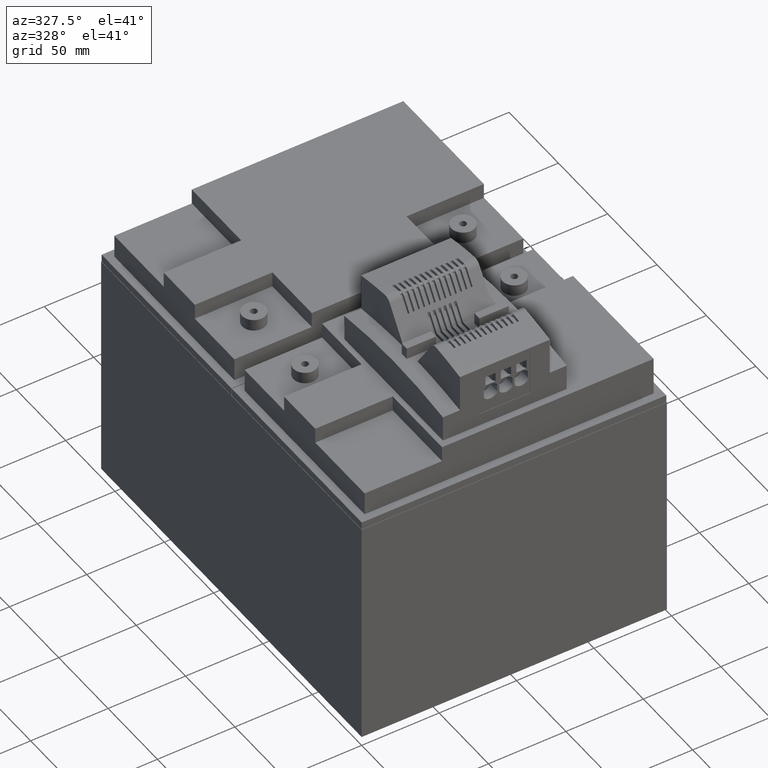
[diagram: clean part render]
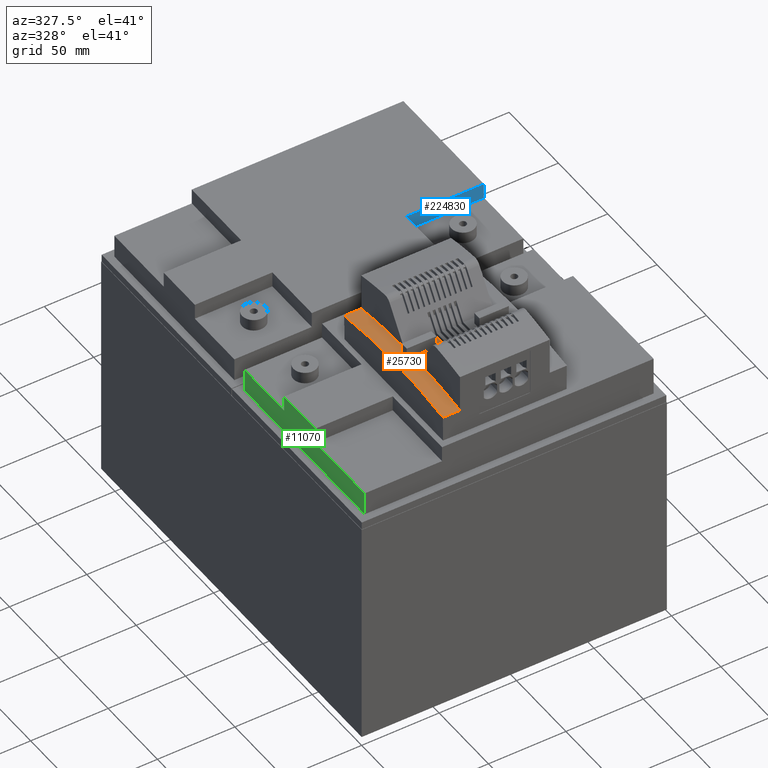
[diagram: same view with three faces highlighted in distinct colors, each labeled with its STEP entity id]
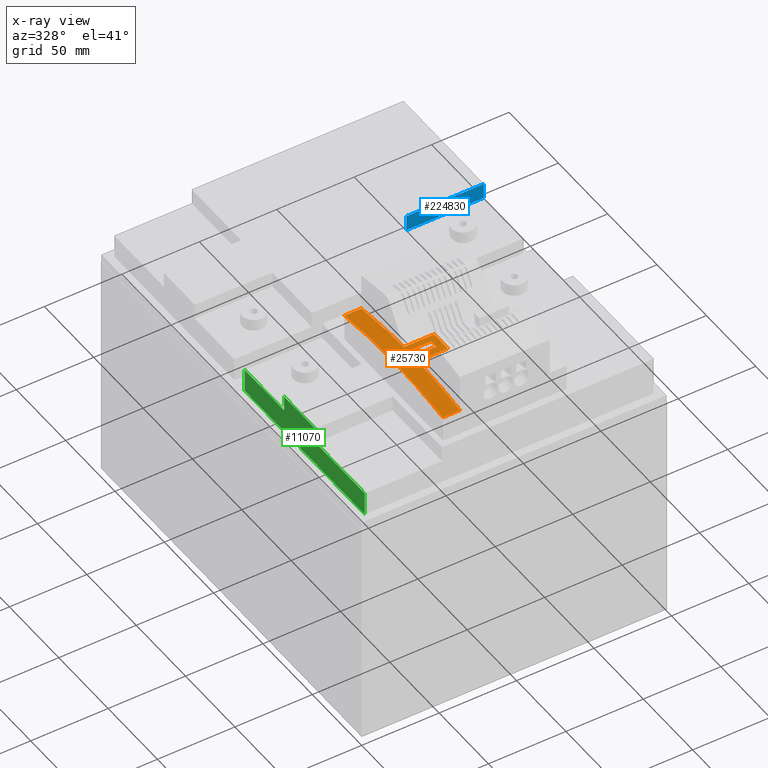
[diagram: x-ray of the same camera — body ghosted, the three highlighted faces saturated]
A machine part, auxiliary view with three faces highlighted in distinct colors.
The next image is the same camera in x-ray (body ghosted, the three faces saturated) — at least one of them is partly hidden behind the body in this view.
Their STEP definitions:

[orange] entity #25730 — the highlighted cylindrical surface (partial cylindrical patch) has radius 325 mm, axis along (1, 0, 0).
#14850=CARTESIAN_POINT('',(69.5,364.05,193.830814466628));
#14860=VERTEX_POINT('',#14850);
#14890=CARTESIAN_POINT('',(58.,364.05,193.830814466628));
#14900=DIRECTION('',(1.,0.,0.));
#14910=VECTOR('',#14900,1.);
#14920=LINE('',#14890,#14910);
#14930=CARTESIAN_POINT('',(58.5,364.05,193.830814466628));
#14940=VERTEX_POINT('',#14930);
#14950=EDGE_CURVE('',#14940,#14860,#14920,.T.);
#15540=CARTESIAN_POINT('',(58.5,314.050000000001,-127.300000000001));
#15550=DIRECTION('',(1.,0.,0.));
#15560=DIRECTION('',(0.,-1.,0.));
#15570=AXIS2_PLACEMENT_3D('',#15540,#15550,#15560);
#15580=CIRCLE('',#15570,325.);
#15590=CARTESIAN_POINT('',(58.5,264.05,193.830814466628));
#15600=VERTEX_POINT('',#15590);
#15610=EDGE_CURVE('',#14940,#15600,#15580,.T.);
#18150=CARTESIAN_POINT('',(89.15,321.049999999997,197.624606639756));
#18160=VERTEX_POINT('',#18150);
#18190=CARTESIAN_POINT('',(58.,321.049999999997,197.624606639755));
#18200=DIRECTION('',(1.,0.,0.));
#18210=VECTOR('',#18200,1.);
#18220=LINE('',#18190,#18210);
#18230=CARTESIAN_POINT('',(69.5,321.049999999997,197.624606639756));
#18240=VERTEX_POINT('',#18230);
#18250=EDGE_CURVE('',#18240,#18160,#18220,.T.);
#24680=CARTESIAN_POINT('',(69.5,314.050000000001,-127.300000000001));
#24690=DIRECTION('',(1.,0.,0.));
#24700=DIRECTION('',(0.,-1.,0.));
#24710=AXIS2_PLACEMENT_3D('',#24680,#24690,#24700);
#24720=CIRCLE('',#24710,325.);
#24730=EDGE_CURVE('',#14860,#18240,#24720,.T.);
#24940=CARTESIAN_POINT('',(58.,314.050000000001,-127.300000000001));
#24950=DIRECTION('',(1.,0.,0.));
#24960=DIRECTION('',(0.,-1.,0.));
#24970=AXIS2_PLACEMENT_3D('',#24940,#24950,#24960);
#24980=CYLINDRICAL_SURFACE('',#24970,325.);
#24990=ORIENTED_EDGE('',*,*,#14950,.F.);
#25000=ORIENTED_EDGE('',*,*,#24730,.F.);
#25010=ORIENTED_EDGE('',*,*,#18250,.F.);
#25020=CARTESIAN_POINT('',(89.15,314.050000000001,-127.300000000001));
#25030=DIRECTION('',(1.,0.,0.));
#25040=DIRECTION('',(0.,-1.,0.));
#25050=AXIS2_PLACEMENT_3D('',#25020,#25030,#25040);
#25060=CIRCLE('',#25050,325.);
#25070=CARTESIAN_POINT('',(89.15,307.050000000002,197.624606639755));
#25080=VERTEX_POINT('',#25070);
#25090=EDGE_CURVE('',#18160,#25080,#25060,.T.);
#25100=ORIENTED_EDGE('',*,*,#25090,.F.);
#25110=CARTESIAN_POINT('',(58.,307.050000000002,197.624606639755));
#25120=DIRECTION('',(1.,0.,0.));
#25130=VECTOR('',#25120,1.);
#25140=LINE('',#25110,#25130);
#25150=CARTESIAN_POINT('',(69.5,307.050000000002,197.624606639755));
#25160=VERTEX_POINT('',#25150);
#25170=EDGE_CURVE('',#25160,#25080,#25140,.T.);
#25180=ORIENTED_EDGE('',*,*,#25170,.T.);
#25190=CARTESIAN_POINT('',(69.5,314.050000000001,-127.300000000001));
#25200=DIRECTION('',(1.,0.,0.));
#25210=DIRECTION('',(0.,-1.,0.));
#25220=AXIS2_PLACEMENT_3D('',#25190,#25200,#25210);
#25230=CIRCLE('',#25220,325.);
#25240=CARTESIAN_POINT('',(69.5,264.05,193.830814466628));
#25250=VERTEX_POINT('',#25240);
#25260=EDGE_CURVE('',#25160,#25250,#25230,.T.);
#25270=ORIENTED_EDGE('',*,*,#25260,.F.);
#25280=CARTESIAN_POINT('',(58.,264.05,193.830814466628));
#25290=DIRECTION('',(1.,0.,0.));
#25300=VECTOR('',#25290,1.);
#25310=LINE('',#25280,#25300);
#25320=EDGE_CURVE('',#15600,#25250,#25310,.T.);
#25330=ORIENTED_EDGE('',*,*,#25320,.T.);
#25340=ORIENTED_EDGE('',*,*,#15610,.T.);
#25350=EDGE_LOOP('',(#25340,#25330,#25270,#25180,#25100,#25010,#25000,
#24990));
#25360=FACE_OUTER_BOUND('',#25350,.T.);
#25370=CARTESIAN_POINT('',(58.,311.8,197.692211445136));
#25380=DIRECTION('',(1.,0.,0.));
#25390=VECTOR('',#25380,1.);
#25400=LINE('',#25370,#25390);
#25410=CARTESIAN_POINT('',(65.6,311.8,197.692211445136));
#25420=VERTEX_POINT('',#25410);
#25430=CARTESIAN_POINT('',(84.6,311.8,197.692211445136));
#25440=VERTEX_POINT('',#25430);
#25450=EDGE_CURVE('',#25420,#25440,#25400,.T.);
#25460=ORIENTED_EDGE('',*,*,#25450,.F.);
#25470=CARTESIAN_POINT('',(84.6,314.050000000001,-127.300000000001));
#25480=DIRECTION('',(1.,0.,0.));
#25490=DIRECTION('',(0.,-1.,0.));
#25500=AXIS2_PLACEMENT_3D('',#25470,#25480,#25490);
#25510=CIRCLE('',#25500,325.);
#25520=CARTESIAN_POINT('',(84.6,316.88,197.687678381812));
#25530=VERTEX_POINT('',#25520);
#25540=EDGE_CURVE('',#25530,#25440,#25510,.T.);
#25550=ORIENTED_EDGE('',*,*,#25540,.T.);
#25560=CARTESIAN_POINT('',(58.,316.88,197.687678381811));
#25570=DIRECTION('',(1.,0.,0.));
#25580=VECTOR('',#25570,1.);
#25590=LINE('',#25560,#25580);
#25600=CARTESIAN_POINT('',(65.6,316.88,197.687678381812));
#25610=VERTEX_POINT('',#25600);
#25620=EDGE_CURVE('',#25610,#25530,#25590,.T.);
#25630=ORIENTED_EDGE('',*,*,#25620,.T.);
#25640=CARTESIAN_POINT('',(65.6,314.050000000001,-127.300000000001));
#25650=DIRECTION('',(1.,0.,0.));
#25660=DIRECTION('',(0.,-1.,0.));
#25670=AXIS2_PLACEMENT_3D('',#25640,#25650,#25660);
#25680=CIRCLE('',#25670,325.);
#25690=EDGE_CURVE('',#25610,#25420,#25680,.T.);
#25700=ORIENTED_EDGE('',*,*,#25690,.F.);
#25710=EDGE_LOOP('',(#25700,#25630,#25550,#25460));
#25720=FACE_BOUND('',#25710,.T.);
#25730=ADVANCED_FACE('',(#25360,#25720),#24980,.T.);

[blue] entity #224830 — the highlighted planar face has unit normal (0, 1, -0).
#220490=CARTESIAN_POINT('',(191.8,431.75,167.));
#220500=VERTEX_POINT('',#220490);
#220530=CARTESIAN_POINT('',(191.8,431.75,0.));
#220540=DIRECTION('',(1.38777878078145E-16,1.38777878078145E-16,1.));
#220550=VECTOR('',#220540,1.);
#220560=LINE('',#220530,#220550);
#220570=CARTESIAN_POINT('',(191.8,431.75,177.));
#220580=VERTEX_POINT('',#220570);
#220590=EDGE_CURVE('',#220500,#220580,#220560,.T.);
#222590=CARTESIAN_POINT('',(0.,431.75,177.));
#222600=DIRECTION('',(1.,-2.46519032881566E-32,-1.38777878078145E-16));
#222610=VECTOR('',#222600,1.);
#222620=LINE('',#222590,#222610);
#222630=CARTESIAN_POINT('',(141.8,431.75,177.));
#222640=VERTEX_POINT('',#222630);
#222650=EDGE_CURVE('',#222640,#220580,#222620,.T.);
#224070=CARTESIAN_POINT('',(141.8,431.75,167.));
#224080=DIRECTION('',(1.38777878078145E-16,1.38777878078145E-16,1.));
#224090=VECTOR('',#224080,1.);
#224100=LINE('',#224070,#224090);
#224110=CARTESIAN_POINT('',(141.8,431.75,167.));
#224120=VERTEX_POINT('',#224110);
#224130=EDGE_CURVE('',#224120,#222640,#224100,.T.);
#224390=CARTESIAN_POINT('',(141.8,431.75,167.));
#224400=DIRECTION('',(1.,-1.92592994438724E-32,-1.38777878078145E-16));
#224410=VECTOR('',#224400,1.);
#224420=LINE('',#224390,#224410);
#224430=EDGE_CURVE('',#224120,#220500,#224420,.T.);
#224720=CARTESIAN_POINT('',(141.8,431.75,167.));
#224730=DIRECTION('',(0.,1.,-1.38777878078145E-16));
#224740=DIRECTION('',(1.,-1.92592994438724E-32,-1.38777878078145E-16));
#224750=AXIS2_PLACEMENT_3D('',#224720,#224730,#224740);
#224760=PLANE('',#224750);
#224770=ORIENTED_EDGE('',*,*,#220590,.T.);
#224780=ORIENTED_EDGE('',*,*,#224430,.T.);
#224790=ORIENTED_EDGE('',*,*,#224130,.F.);
#224800=ORIENTED_EDGE('',*,*,#222650,.F.);
#224810=EDGE_LOOP('',(#224800,#224790,#224780,#224770));
#224820=FACE_OUTER_BOUND('',#224810,.T.);
#224830=ADVANCED_FACE('',(#224820),#224760,.F.);

[green] entity #11070 — the highlighted planar face has unit normal (-1, 0, 0).
#1060=CARTESIAN_POINT('',(5.19999999999999,309.75,177.));
#1070=VERTEX_POINT('',#1060);
#1220=CARTESIAN_POINT('',(5.2,309.75,167.));
#1230=VERTEX_POINT('',#1220);
#1260=CARTESIAN_POINT('',(5.19999999999998,309.75,2.20240492510015E-14))
;
#1270=DIRECTION('',(-1.38777878078145E-16,-1.38777878078144E-16,-1.));
#1280=VECTOR('',#1270,1.);
#1290=LINE('',#1260,#1280);
#1300=EDGE_CURVE('',#1070,#1230,#1290,.T.);
#2370=CARTESIAN_POINT('',(5.2,259.75,167.));
#2380=VERTEX_POINT('',#2370);
#2410=CARTESIAN_POINT('',(5.2,773.1,167.));
#2420=DIRECTION('',(0.,1.,-1.38777878078144E-16));
#2430=VECTOR('',#2420,1.);
#2440=LINE('',#2410,#2430);
#2450=EDGE_CURVE('',#2380,#1230,#2440,.T.);
#4210=CARTESIAN_POINT('',(5.2,773.1,152.));
#4220=DIRECTION('',(0.,1.,-1.38777878078144E-16));
#4230=VECTOR('',#4220,1.);
#4240=LINE('',#4210,#4230);
#4250=CARTESIAN_POINT('',(5.2,259.75,152.));
#4260=VERTEX_POINT('',#4250);
#4270=CARTESIAN_POINT('',(5.2,381.35,152.));
#4280=VERTEX_POINT('',#4270);
#4290=EDGE_CURVE('',#4260,#4280,#4240,.T.);
#5230=CARTESIAN_POINT('',(5.19999999999998,259.75,3.59018370588159E-14))
;
#5240=DIRECTION('',(1.38777878078145E-16,1.38777878078144E-16,1.));
#5250=VECTOR('',#5240,1.);
#5260=LINE('',#5230,#5250);
#5270=EDGE_CURVE('',#4260,#2380,#5260,.T.);
#5550=CARTESIAN_POINT('',(5.2,773.1,177.));
#5560=DIRECTION('',(0.,1.,-1.38777878078144E-16));
#5570=VECTOR('',#5560,1.);
#5580=LINE('',#5550,#5570);
#5590=CARTESIAN_POINT('',(5.2,341.35,177.));
#5600=VERTEX_POINT('',#5590);
#5610=EDGE_CURVE('',#1070,#5600,#5580,.T.);
#8500=CARTESIAN_POINT('',(5.2,381.35,167.));
#8510=VERTEX_POINT('',#8500);
#8540=CARTESIAN_POINT('',(5.19999999999998,381.35,2.15105711021118E-15))
;
#8550=DIRECTION('',(-1.38777878078145E-16,-2.77555756156289E-16,-1.));
#8560=VECTOR('',#8550,1.);
#8570=LINE('',#8540,#8560);
#8580=EDGE_CURVE('',#8510,#4280,#8570,.T.);
#8780=CARTESIAN_POINT('',(5.19999999999998,341.35,1.32532873564627E-14))
;
#8790=DIRECTION('',(1.38777878078145E-16,1.38777878078144E-16,1.));
#8800=VECTOR('',#8790,1.);
#8810=LINE('',#8780,#8800);
#8820=CARTESIAN_POINT('',(5.2,341.35,167.));
#8830=VERTEX_POINT('',#8820);
#8840=EDGE_CURVE('',#8830,#5600,#8810,.T.);
#9230=CARTESIAN_POINT('',(5.2,773.1,167.));
#9240=DIRECTION('',(0.,1.,-1.38777878078144E-16));
#9250=VECTOR('',#9240,1.);
#9260=LINE('',#9230,#9250);
#9270=EDGE_CURVE('',#8830,#8510,#9260,.T.);
#10920=CARTESIAN_POINT('',(5.2,265.798154195191,165.5));
#10930=DIRECTION('',(-1.,1.92592994438723E-32,1.38777878078145E-16));
#10940=DIRECTION('',(1.92592994438724E-32,-1.,2.77555756156289E-16));
#10950=AXIS2_PLACEMENT_3D('',#10920,#10930,#10940);
#10960=PLANE('',#10950);
#10970=ORIENTED_EDGE('',*,*,#8580,.T.);
#10980=ORIENTED_EDGE('',*,*,#9270,.T.);
#10990=ORIENTED_EDGE('',*,*,#8840,.F.);
#11000=ORIENTED_EDGE('',*,*,#5610,.T.);
#11010=ORIENTED_EDGE('',*,*,#1300,.F.);
#11020=ORIENTED_EDGE('',*,*,#2450,.T.);
#11030=ORIENTED_EDGE('',*,*,#5270,.T.);
#11040=ORIENTED_EDGE('',*,*,#4290,.F.);
#11050=EDGE_LOOP('',(#11040,#11030,#11020,#11010,#11000,#10990,#10980,
#10970));
#11060=FACE_OUTER_BOUND('',#11050,.T.);
#11070=ADVANCED_FACE('',(#11060),#10960,.T.);